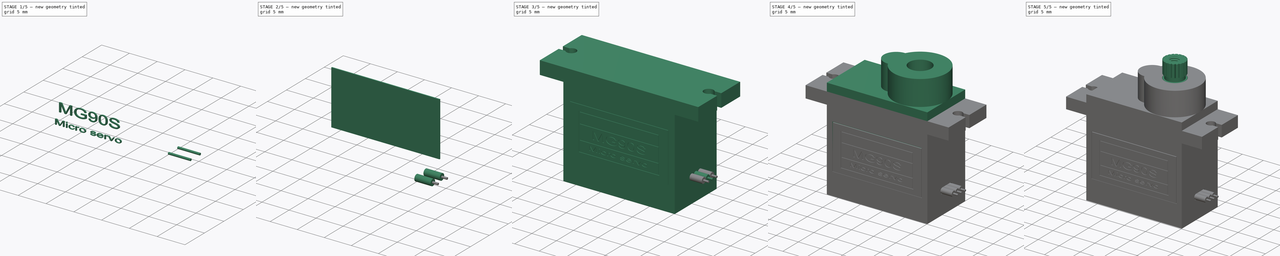
[diagram: build sequence overview — one tinted view per stage of 5, left to right]
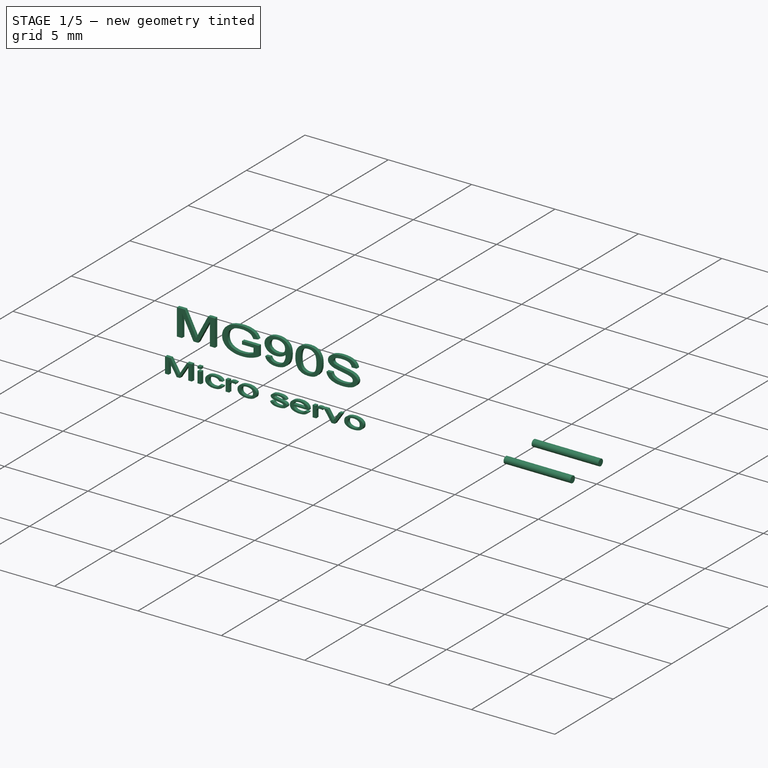
[diagram: stage 1 of 5 — iso view after this stage's code; geometry added in this stage tinted green]
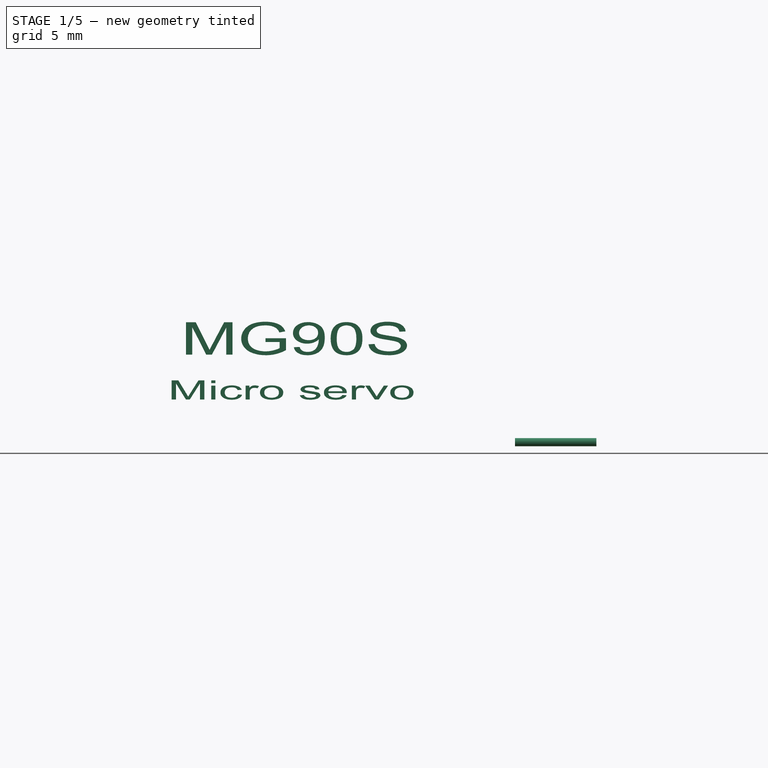
[diagram: stage 1 of 5 — front view after this stage's code; geometry added in this stage tinted green]
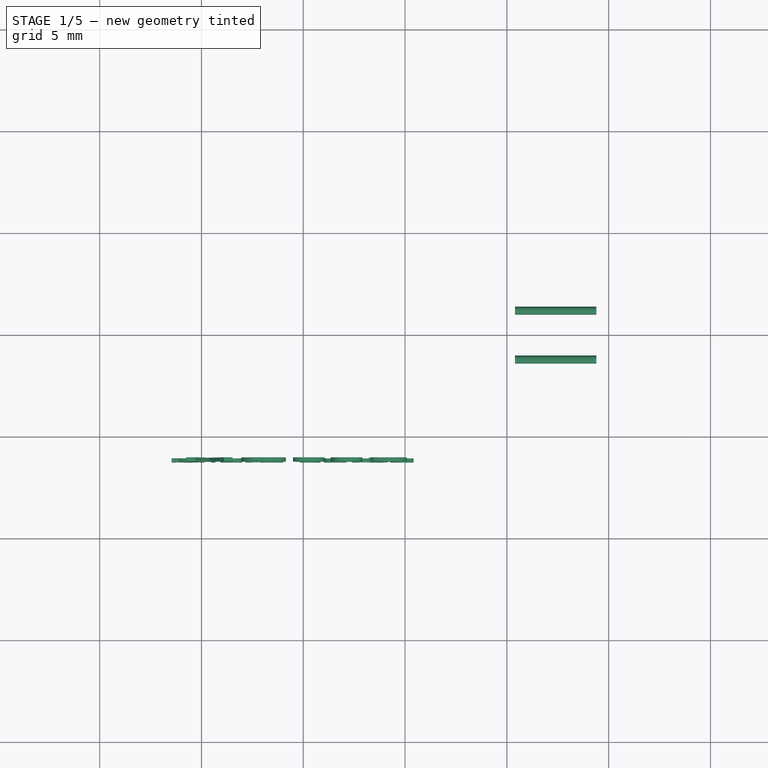
[diagram: stage 1 of 5 — top view after this stage's code; geometry added in this stage tinted green]
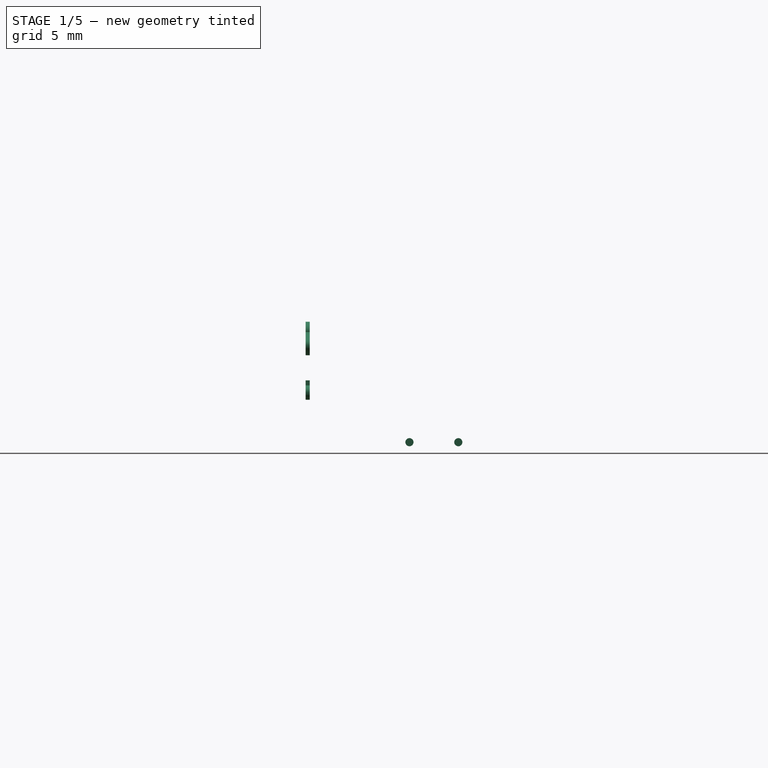
[diagram: stage 1 of 5 — right view after this stage's code; geometry added in this stage tinted green]
FCSTD DOCUMENT  (FreeCAD 0.21R33771 (Git))
Label: M90S_ali
License: All rights reserved
LicenseURL: http://en.wikipedia.org/wiki/All_rights_reserved
objects: Sketcher::SketchObject×13, PartDesign::Pad×5, PartDesign::Pocket×4, Part::Extrusion×4, Part::Part2DObjectPython×4, Part::Cut×3, Part::FeaturePython×3, Part::Cylinder×3, PartDesign::Body×2, PartDesign::Groove×1, PartDesign::Hole×1, PartDesign::PolarPattern×1, PartDesign::Mirrored×1, Part::Refine×1, Part::Compound×1
note: 58 computed .brp shape members not serialized (recipe doc carries the construction recipe); baked Part::Feature solids carry a one-line shape summary decoded from their .brp

FEATURE [Part::Part2DObjectPython] ShapeString  # Draft 2D object (typed FeaturePython)
  FontFile = <path>
  MakeFace = true
  Placement = pos=(-8.6,-6,-8.4) rot=(1,0,0;1.5708rad)
  Size = 1.7
  String = MG90S
  Tracking = 0
FEATURE [Part::Part2DObjectPython] Clone2D  label="ShapeString (2D)"  # Draft 2D object (typed FeaturePython)
  Fuse = false
  Objects = -> [ShapeString]
  Placement = pos=(-11,-6.1,-8.6) rot=(1,0,0;1.5708rad)
  Scale = (1.5,1,1)
FEATURE [Part::Part2DObjectPython] ShapeString001  # Draft 2D object (typed FeaturePython)
  FontFile = <path>
  MakeFace = true
  Placement = pos=(-9.8,-6,-11.2) rot=(1,0,0;1.5708rad)
  Size = 1
  String = Micro servo
  Tracking = 0
FEATURE [Part::Part2DObjectPython] Clone2D001  label="ShapeString001 (2D)"  # Draft 2D object (typed FeaturePython)
  Fuse = false
  Objects = -> [ShapeString001]
  Placement = pos=(-11.64,-6.1,-11.2) rot=(1,0,0;1.5708rad)
  Scale = (1.8,1,1)
FEATURE [Part::Extrusion] Extrude001
  Base = -> Clone2D001
  Dir = (0,-1,2e-16)
  DirMode = 2
  FaceMakerClass = Part::FaceMakerBullseye
  LengthFwd = 0.2
  LengthRev = 0
  Solid = false
  Symmetric = false
FEATURE [Part::Extrusion] Extrude002
  Base = -> Clone2D
  Dir = (0,-1,2e-16)
  DirMode = 2
  FaceMakerClass = Part::FaceMakerBullseye
  LengthFwd = 0.2
  LengthRev = 0
  Placement = pos=(0,0,-0.4) rot=(0,0,1;0rad)
  Solid = false
  Symmetric = false
FEATURE [Part::Compound] Compound
  Links = -> [Extrude001,Extrude002]
FEATURE [Part::Cylinder] Cylinder001  label="Cylindre001"
  Angle = 360
  AttacherType = Attacher::AttachEngine3D
  FirstAngle = 0
  Height = 4
  Placement = pos=(5.4,1.2,-13.3) rot=(0,1,0;1.5708rad)
  Radius = 0.2
  SecondAngle = 0
FEATURE [Part::Cylinder] Cylinder002  label="Cylindre002"
  Angle = 360
  AttacherType = Attacher::AttachEngine3D
  FirstAngle = 0
  Height = 4
  Placement = pos=(5.4,-1.2,-13.3) rot=(0,1,0;1.5708rad)
  Radius = 0.2
  SecondAngle = 0
note: 2 file-system paths scrubbed to <path> (originals preserved in the JSON sidecar)
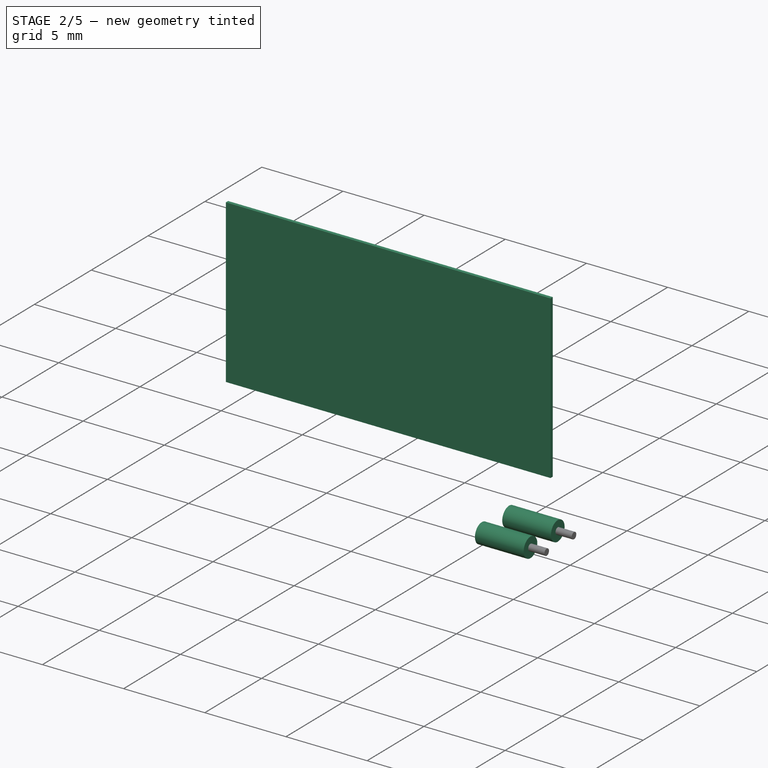
[diagram: stage 2 of 5 — iso view after this stage's code; geometry added in this stage tinted green]
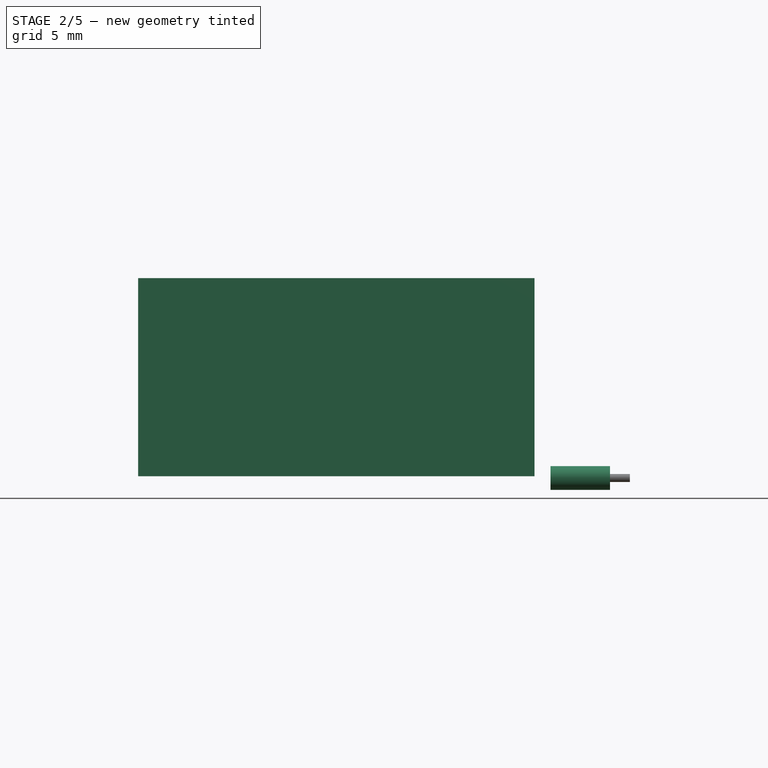
[diagram: stage 2 of 5 — front view after this stage's code; geometry added in this stage tinted green]
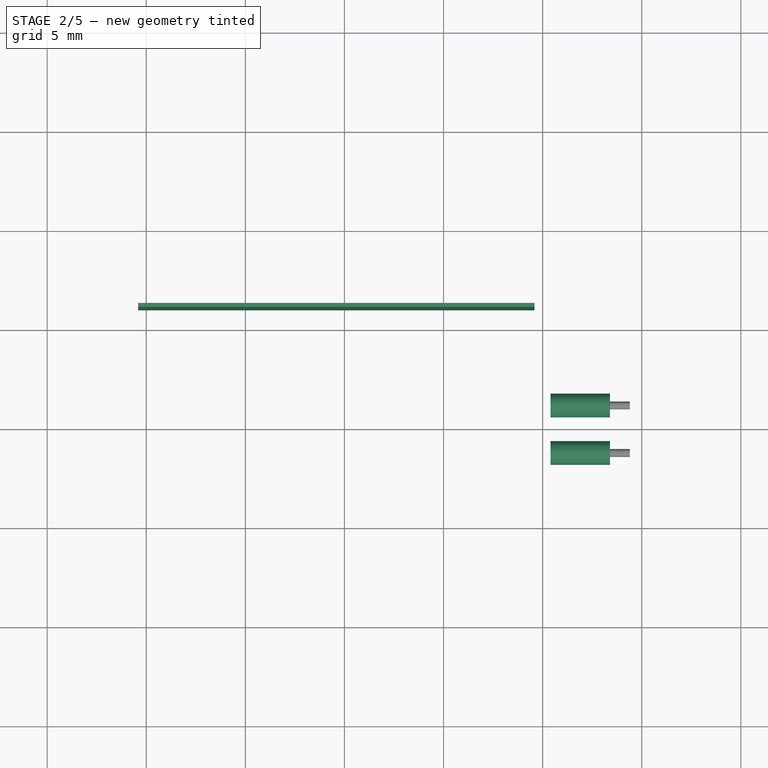
[diagram: stage 2 of 5 — top view after this stage's code; geometry added in this stage tinted green]
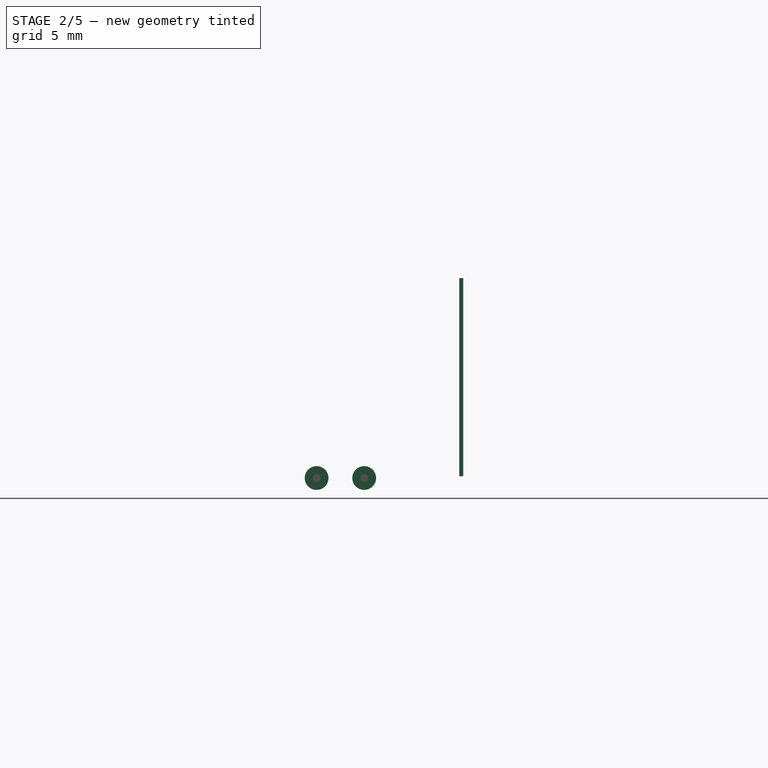
[diagram: stage 2 of 5 — right view after this stage's code; geometry added in this stage tinted green]
FEATURE [PartDesign::Body] Body  label="base"
  Group = -> [Sketch,Pad,Sketch001,Pad001,Sketch002,Pad002,Sketch003,Pad003,Sketch004,Pocket,Sketch005,Pocket001,Sketch010,Pocket003,Mirrored]
  Origin = -> Origin
  Tip = -> Mirrored
FEATURE [Part::Refine] Body002  label="base001"
  Source = -> Body
FEATURE [Sketcher::SketchObject] Sketch011
  FullyConstrained = true
  Placement = pos=(0,0,0) rot=(1,0,0;1.5708rad)
  sketch-geometry (4):
    g0: LineSegment StartX=-15.3914 StartY=-3.21198 StartZ=0 EndX=4.60862 EndY=-3.21198 EndZ=0
    g1: LineSegment StartX=4.60862 StartY=-3.21198 StartZ=0 EndX=4.60862 EndY=-13.212 EndZ=0
    g2: LineSegment StartX=4.60862 StartY=-13.212 StartZ=0 EndX=-15.3914 EndY=-13.212 EndZ=0
    g3: LineSegment StartX=-15.3914 StartY=-13.212 StartZ=0 EndX=-15.3914 EndY=-3.21198 EndZ=0
  constraints (12):
    c: Coincident(g0,g1)
    c: Coincident(g1,g2)
    c: Coincident(g2,g3)
    c: Coincident(g3,g0)
    c: Horizontal(g0)
    c: Horizontal(g2)
    c: Vertical(g1)
    c: Vertical(g3)
    c: DistanceX(g0,g0) = 20
    c: DistanceY(g1,g1) = 10
    c: DistanceX(g0) = 4.60862
    c: DistanceY(g0) = -3.21198
FEATURE [Part::Extrusion] Extrude
  Base = -> Sketch011
  Dir = (0,-1,2e-16)
  DirMode = 2
  FaceMakerClass = Part::FaceMakerBullseye
  LengthFwd = 0.2
  LengthRev = 0
  Placement = pos=(0,-6,0) rot=(0,0,1;0rad)
  Solid = true
  Symmetric = false
FEATURE [Sketcher::SketchObject] Sketch012
  ExternalGeometry = -> [Extrude]
  FullyConstrained = false
  Placement = pos=(0,-6.1,0) rot=(1,0,0;1.5708rad)
  sketch-geometry (21):
    g0: LineSegment StartX=-13.3914 StartY=-6.81198 StartZ=0 EndX=2.60862 EndY=-6.81198 EndZ=0
    g1: LineSegment StartX=2.60862 StartY=-6.81198 StartZ=0 EndX=2.60862 EndY=-9.61198 EndZ=0
    g2: LineSegment StartX=2.60862 StartY=-9.61198 StartZ=0 EndX=-13.3914 EndY=-9.61198 EndZ=0
    g3: LineSegment StartX=-13.3914 StartY=-9.61198 StartZ=0 EndX=-13.3914 EndY=-6.81198 EndZ=0
    g4: LineSegment StartX=-13.3914 StartY=-9.81198 StartZ=0 EndX=2.60862 EndY=-9.81198 EndZ=0
    g5: LineSegment StartX=2.60862 StartY=-9.81198 StartZ=0 EndX=2.60862 EndY=-11.812 EndZ=0
    g6: LineSegment StartX=2.60862 StartY=-11.812 StartZ=0 EndX=-13.3914 EndY=-11.812 EndZ=0
    g7: LineSegment StartX=-13.3914 StartY=-11.812 StartZ=0 EndX=-13.3914 EndY=-9.81198 EndZ=0
    g8: LineSegment StartX=-13.3914 StartY=-4.61198 StartZ=0 EndX=2.60862 EndY=-4.61198 EndZ=0
    g9: LineSegment StartX=2.60862 StartY=-4.61198 StartZ=0 EndX=2.60862 EndY=-6.61198 EndZ=0
    g10: LineSegment StartX=2.60862 StartY=-6.61198 StartZ=0 EndX=-13.3914 EndY=-6.61198 EndZ=0
    g11: LineSegment StartX=-13.3914 StartY=-6.61198 StartZ=0 EndX=-13.3914 EndY=-4.61198 EndZ=0
    g12: LineSegment StartX=-13.5914 StartY=-4.41198 StartZ=0 EndX=2.80862 EndY=-4.41198 EndZ=0
    g13: LineSegment StartX=2.80862 StartY=-4.41198 StartZ=0 EndX=2.80862 EndY=-12.012 EndZ=0
    g14: LineSegment StartX=2.80862 StartY=-12.012 StartZ=0 EndX=-13.5914 EndY=-12.012 EndZ=0
    g15: LineSegment StartX=-13.5914 StartY=-12.012 StartZ=0 EndX=-13.5914 EndY=-4.41198 EndZ=0
    g16: GeomPoint X=-5.39138 Y=-13.212 Z=0
    g17: LineSegment StartX=-5.39138 StartY=-13.212 StartZ=0 EndX=-5.39138 EndY=-3.21198 EndZ=0
    g18: GeomPoint X=-5.39138 Y=-8.21198 Z=0
    g19: GeomPoint X=-5.39138 Y=-8.21198 Z=0
    g20: LineSegment StartX=-5.39138 StartY=-8.21198 StartZ=0 EndX=-9.69464 EndY=-8.21198 EndZ=0
  constraints (55):
    c: Coincident(g0,g1)
    c: Coincident(g1,g2)
    c: Coincident(g2,g3)
    c: Coincident(g3,g0)
    c: Horizontal(g0)
    c: Horizontal(g2)
    c: Vertical(g1)
    c: Vertical(g3)
    c: Coincident(g4,g5)
    c: Coincident(g5,g6)
    c: Coincident(g6,g7)
    c: Coincident(g7,g4)
    c: Horizontal(g4)
    c: Horizontal(g6)
    c: Vertical(g5)
    c: Vertical(g7)
    c: Coincident(g8,g9)
    c: Coincident(g9,g10)
    c: Coincident(g10,g11)
    c: Coincident(g11,g8)
    c: Horizontal(g8)
    c: Horizontal(g10)
    c: Vertical(g9)
    c: Vertical(g11)
    c: Vertical(g10,g0)
    c: Vertical(g0,g4)
    c: Vertical(g9,g0)
    c: Vertical(g0,g4)
    c: DistanceY(g0,g10) = 0.2
    c: DistanceY(g4,g2) = 0.2
    c: Coincident(g12,g13)
    c: Coincident(g13,g14)
    c: Coincident(g14,g15)
    c: Coincident(g15,g12)
    c: Horizontal(g12)
    c: Horizontal(g14)
    c: Vertical(g13)
    c: Vertical(g15)
    c: DistanceX(g6,g6) = 16
    c: Symmetric(g-4,g-4,g16)
    c: Coincident(g17,g16)
    c: PointOnObject(g17,g-3)
    c: Symmetric(g6,g5,g17)
    c: DistanceX(g14,g6) = 0.2
    c: DistanceX(g5,g13) = 0.2
    c: DistanceY(g8,g12) = 0.2
    c: PointOnObject(g18,g17)
    c: Symmetric(g17,g16,g19)
    c: DistanceY(g10,g8) = 2
    c: DistanceY(g2,g0) = 2.8
    c: DistanceY(g6,g4) = 2
    c: DistanceY(g14,g6) = 0.2
    c: DistanceY(g14,g12) = 7.6
    c: Coincident(g20,g19)
    c: Symmetric(g12,g14,g20)
FEATURE [Part::Extrusion] Extrude003
  Base = -> Sketch012
  Dir = (0,-1,2e-16)
  DirMode = 2
  FaceMakerClass = Part::FaceMakerBullseye
  LengthFwd = 0.2
  LengthRev = 0
  Solid = true
  Symmetric = false
FEATURE [Part::Cut] Cut
  Base = -> Extrude
  Tool = -> Extrude003
FEATURE [Part::FeaturePython] Tube001  # WARN: FeaturePython — macro-defined, semantics opaque (R4)
  AttacherType = Attacher::AttachEngine3D
  Height = 3
  InnerRadius = 0.2
  OuterRadius = 0.6
  Placement = pos=(5.4,-1.2,-13.3) rot=(0,1,0;1.5708rad)
FEATURE [Part::FeaturePython] Tube002  # WARN: FeaturePython — macro-defined, semantics opaque (R4)
  AttacherType = Attacher::AttachEngine3D
  Height = 3
  InnerRadius = 0.2
  OuterRadius = 0.6
  Placement = pos=(5.4,1.2,-13.3) rot=(0,1,0;1.5708rad)
FEATURE [Part::Cut] Cut002  label="etiquette001"
  Base = -> Cut
  Placement = pos=(-10.8,1e-15,0) rot=(0,0,1;3.14159rad)
  Tool = -> Compound
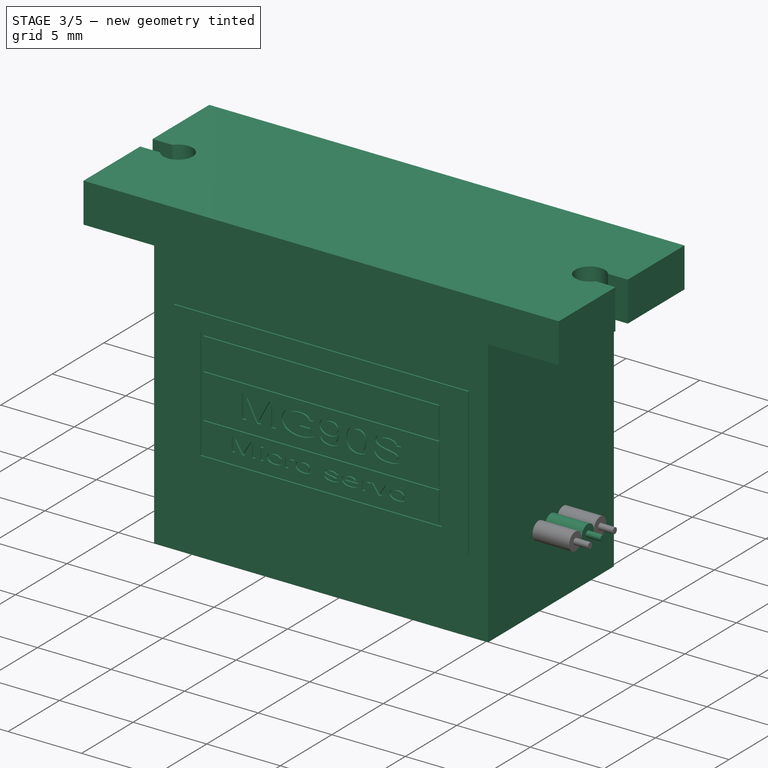
[diagram: stage 3 of 5 — iso view after this stage's code; geometry added in this stage tinted green]
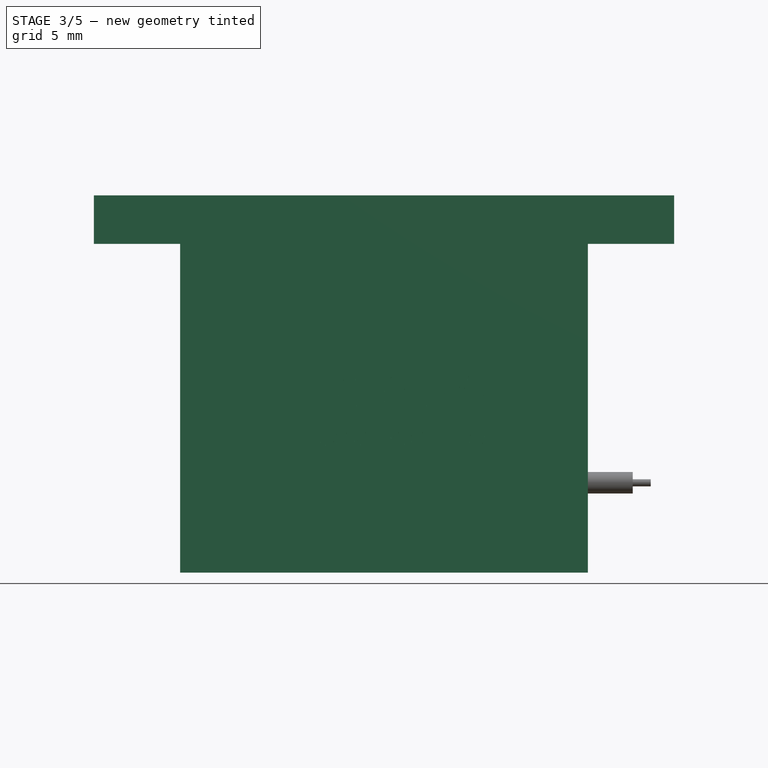
[diagram: stage 3 of 5 — front view after this stage's code; geometry added in this stage tinted green]
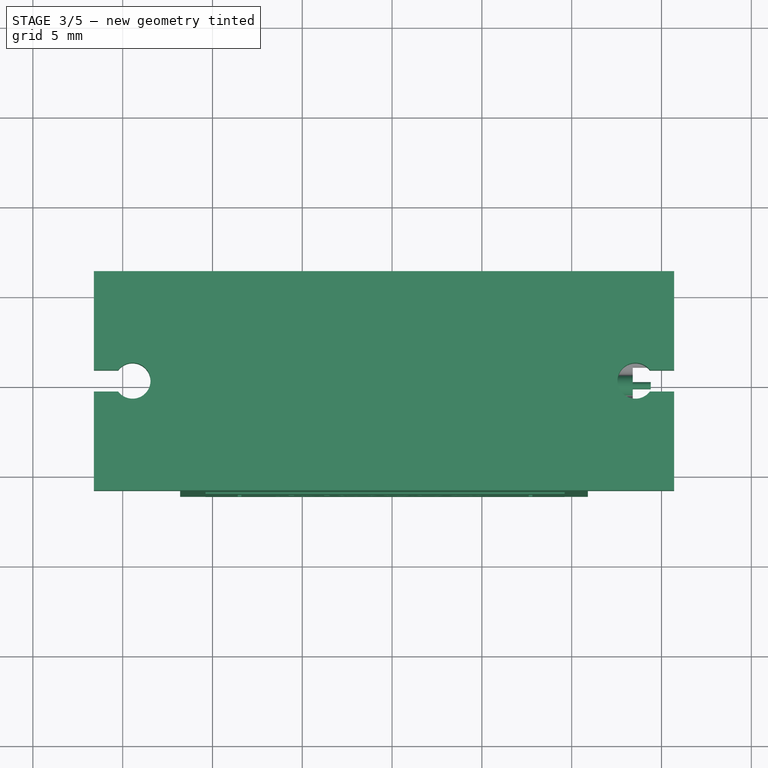
[diagram: stage 3 of 5 — top view after this stage's code; geometry added in this stage tinted green]
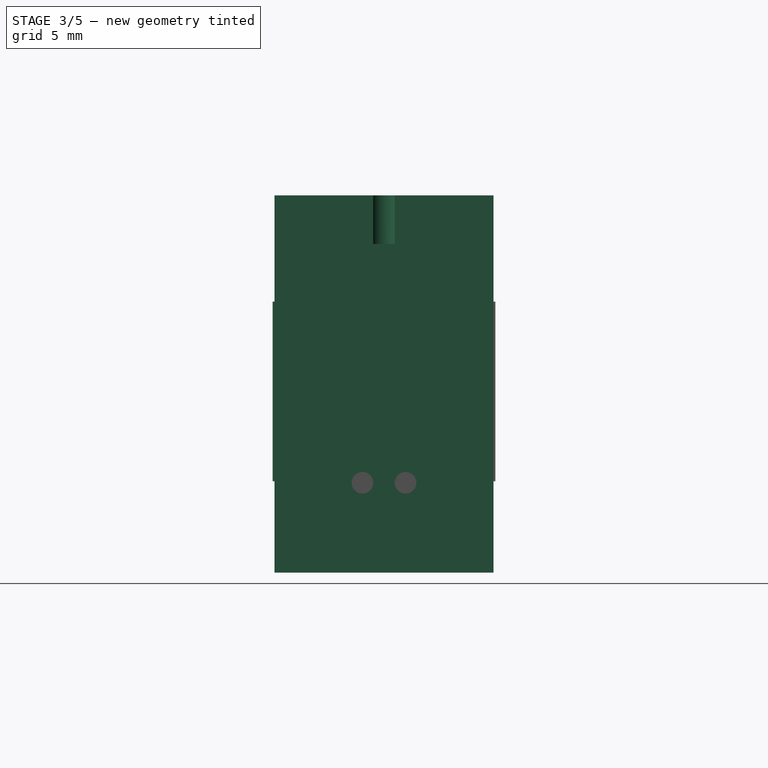
[diagram: stage 3 of 5 — right view after this stage's code; geometry added in this stage tinted green]
FEATURE [Sketcher::SketchObject] Sketch
  FullyConstrained = true
  MapMode = 5
  Support = -> [XY_Plane]
  sketch-geometry (7):
    g0: LineSegment StartX=-16.8 StartY=6.1 StartZ=0 EndX=-16.8 EndY=-6.1 EndZ=0
    g1: LineSegment StartX=-16.8 StartY=-6.1 StartZ=0 EndX=5.9 EndY=-6.1 EndZ=0
    g2: LineSegment StartX=5.9 StartY=-6.1 StartZ=0 EndX=5.9 EndY=6.1 EndZ=0
    g3: LineSegment StartX=5.9 StartY=6.1 StartZ=0 EndX=-16.8 EndY=6.1 EndZ=0
    g4: GeomPoint X=-5.45 Y=0 Z=0
    g5: GeomPoint X=-19.5 Y=0 Z=0
    g6: GeomPoint X=8.5 Y=0 Z=0
  constraints (19):
    c: Coincident(g0,g1)
    c: Coincident(g1,g2)
    c: Coincident(g2,g3)
    c: Coincident(g3,g0)
    c: Horizontal(g1)
    c: Horizontal(g3)
    c: Vertical(g0)
    c: Vertical(g2)
    c: Symmetric(g1,g0,g4)
    c: PointOnObject(g4,g-1)
    c: DistanceY(g2,g2) = 12.2
    c: DistanceX(g3,g3) = 22.7
    c: PointOnObject(g5,g-1)
    c: PointOnObject(g6,g-1)
    c: DistanceX(g-1,g6) = 8.5
    c: DistanceX(g5,g-1) = 19.5
    c: DistanceX(g5,g6) = 28
    c: DistanceX(g1,g6) = 2.6
    c: DistanceX(g5,g0) = 2.7
FEATURE [PartDesign::Pad] Pad
  Direction = (0,0,1)
  Length = 18.3
  Length2 = 10
  Profile = -> Sketch
  ReferenceAxis = -> Sketch [N_Axis]
  Reversed = true
  Type = 0
FEATURE [Sketcher::SketchObject] Sketch001
  ExternalGeometry = -> [Pad]
  FullyConstrained = true
  MapMode = 5
  Support = -> [XY_Plane]
  sketch-geometry (15):
    g0: LineSegment StartX=-21.6 StartY=6.1 StartZ=0 EndX=-21.6 EndY=0.6 EndZ=0
    g1: LineSegment StartX=-21.6 StartY=-6.1 StartZ=0 EndX=10.7 EndY=-6.1 EndZ=0
    g2: LineSegment StartX=10.7 StartY=-6.1 StartZ=0 EndX=10.7 EndY=-0.6 EndZ=0
    g3: LineSegment StartX=10.7 StartY=6.1 StartZ=0 EndX=-21.6 EndY=6.1 EndZ=0
    g4: GeomPoint X=-5.45 Y=0 Z=0
    g5: GeomPoint X=-5.45 Y=6.1 Z=0
    g6: ArcOfCircle CenterX=-19.45 CenterY=0 CenterZ=0 NormalX=0 NormalY=0 NormalZ=1 AngleXU=0 Radius=1 StartAngle=3.78509 EndAngle=8.78128
    g7: ArcOfCircle CenterX=8.55 CenterY=0 CenterZ=0 NormalX=0 NormalY=0 NormalZ=1 AngleXU=0 Radius=1 StartAngle=0.643501 EndAngle=5.63968
    g8: LineSegment StartX=-5.45 StartY=6.1 StartZ=0 EndX=-5.45 EndY=-6.1 EndZ=0
    g9: LineSegment StartX=-20.25 StartY=0.6 StartZ=0 EndX=-21.6 EndY=0.6 EndZ=0
    g10: LineSegment StartX=-20.25 StartY=-0.6 StartZ=0 EndX=-21.6 EndY=-0.6 EndZ=0
    g11: LineSegment StartX=-21.6 StartY=-0.6 StartZ=0 EndX=-21.6 EndY=-6.1 EndZ=0
    g12: LineSegment StartX=9.35 StartY=0.6 StartZ=0 EndX=10.7 EndY=0.6 EndZ=0
    g13: LineSegment StartX=9.35 StartY=-0.6 StartZ=0 EndX=10.7 EndY=-0.6 EndZ=0
    g14: LineSegment StartX=10.7 StartY=0.6 StartZ=0 EndX=10.7 EndY=6.1 EndZ=0
  constraints (40):
    c: Coincident(g11,g1)
    c: Coincident(g1,g2)
    c: Coincident(g14,g3)
    c: Coincident(g3,g0)
    c: Horizontal(g1)
    c: Horizontal(g3)
    c: Vertical(g0)
    c: Vertical(g2)
    c: Symmetric(g1,g0,g4)
    c: PointOnObject(g4,g-1)
    c: Symmetric(g-3,g-4,g5)
    c: DistanceX(g3,g3) = 32.3
    c: Symmetric(g0,g14,g5)
    c: PointOnObject(g6,g-1)
    c: PointOnObject(g7,g-1)
    c: Coincident(g8,g5)
    c: PointOnObject(g8,g1)
    c: DistanceX(g6,g7) = 28
    c: Symmetric(g6,g7,g8)
    c: Horizontal(g9)
    c: Horizontal(g10)
    c: Symmetric(g9,g10,g-1)
    c: DistanceY(g10,g9) = 1.2
    c: Diameter(g6) = 2
    c: Coincident(g6,g9)
    c: Coincident(g6,g10)
    c: Coincident(g0,g9)
    c: Vertical(g11)
    c: Coincident(g11,g10)
    c: Equal(g6,g7)
    c: Horizontal(g12)
    c: Horizontal(g13)
    c: Horizontal(g13,g6)
    c: Horizontal(g12,g6)
    c: Coincident(g7,g13)
    c: Coincident(g7,g12)
    c: Coincident(g2,g13)
    c: Coincident(g14,g12)
    c: Vertical(g14)
    c: Vertical(g2,g12)
FEATURE [PartDesign::Pad] Pad001
  BaseFeature = -> Pad
  Direction = (0,0,1)
  Length = 2.7
  Length2 = 10
  Profile = -> Sketch001
  ReferenceAxis = -> Sketch001 [N_Axis]
  Type = 0
FEATURE [Part::Cut] Cut001  label="etiquette"
  Base = -> Cut
  Tool = -> Compound
FEATURE [Part::FeaturePython] Tube  # WARN: FeaturePython — macro-defined, semantics opaque (R4)
  AttacherType = Attacher::AttachEngine3D
  Height = 3
  InnerRadius = 0.2
  OuterRadius = 0.6
  Placement = pos=(5.4,0,-13.3) rot=(0,1,0;1.5708rad)
FEATURE [Part::Cylinder] Cylinder  label="Cylindre"
  Angle = 360
  AttacherType = Attacher::AttachEngine3D
  FirstAngle = 0
  Height = 4
  Placement = pos=(5.4,0,-13.3) rot=(0,1,0;1.5708rad)
  Radius = 0.2
  SecondAngle = 0
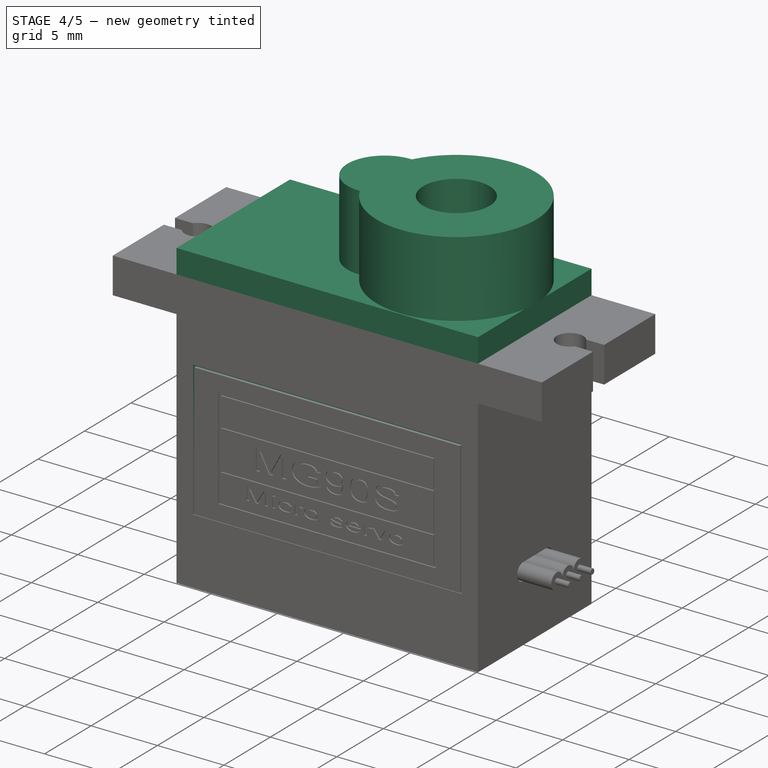
[diagram: stage 4 of 5 — iso view after this stage's code; geometry added in this stage tinted green]
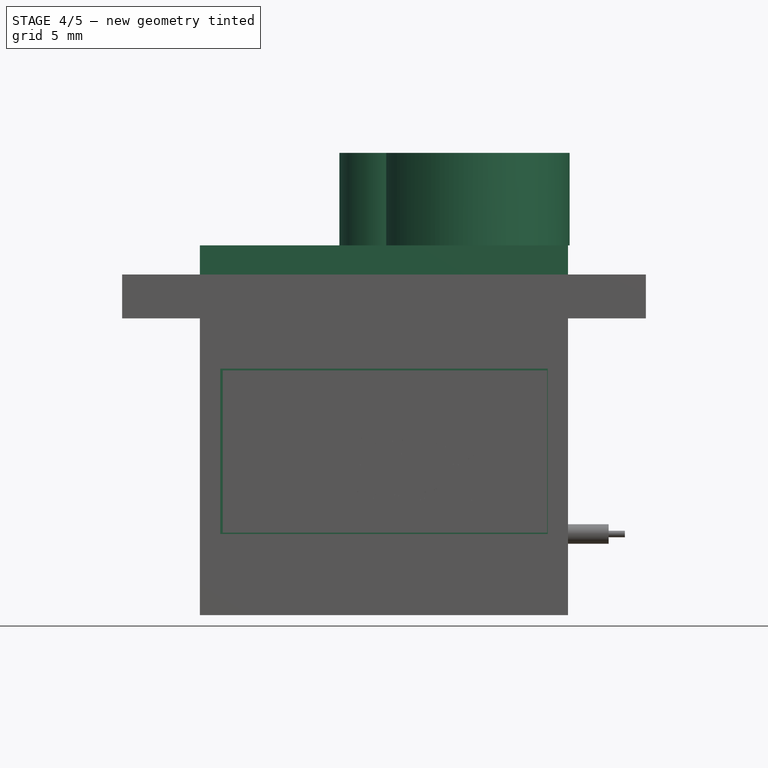
[diagram: stage 4 of 5 — front view after this stage's code; geometry added in this stage tinted green]
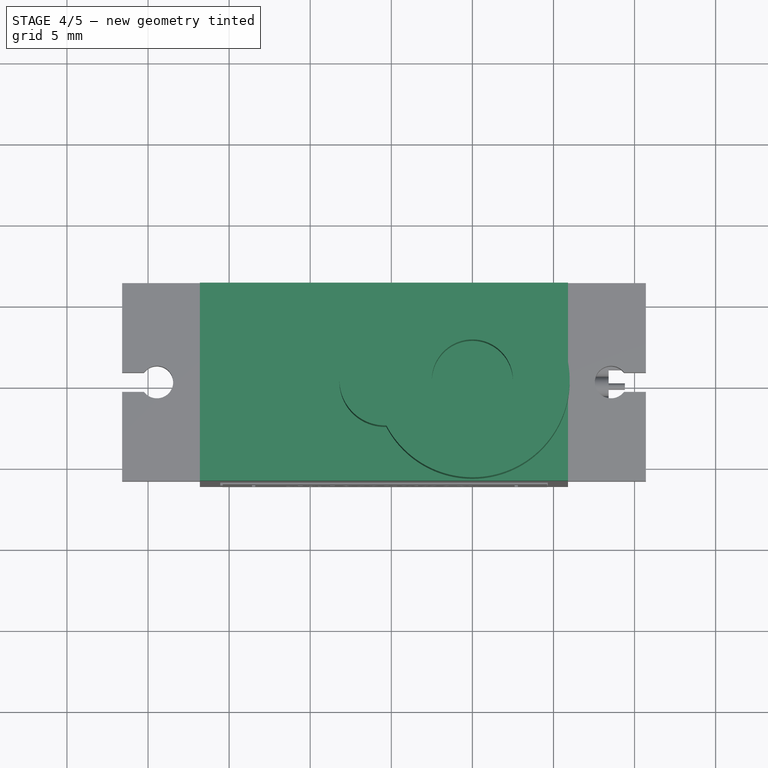
[diagram: stage 4 of 5 — top view after this stage's code; geometry added in this stage tinted green]
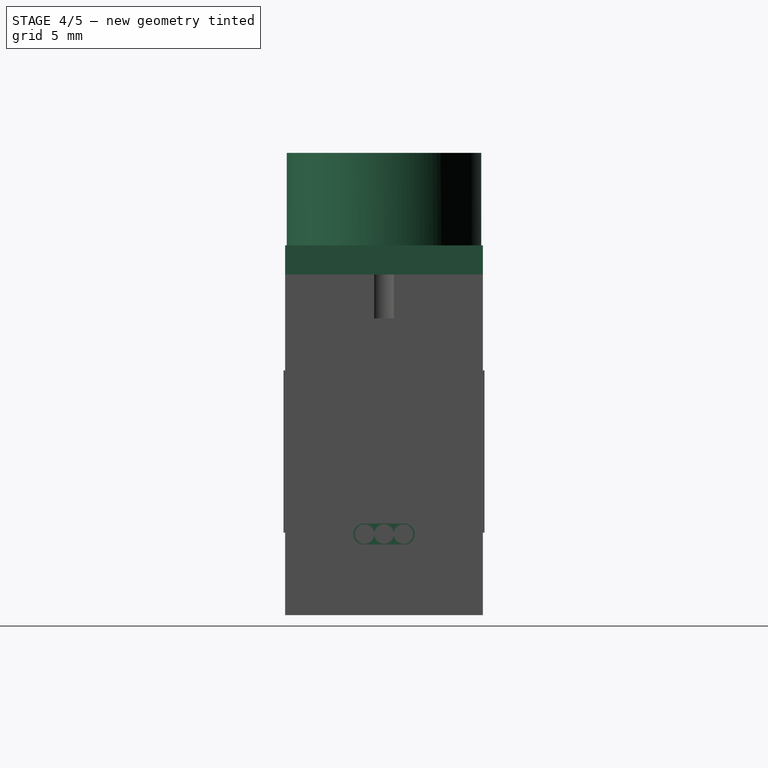
[diagram: stage 4 of 5 — right view after this stage's code; geometry added in this stage tinted green]
FEATURE [Sketcher::SketchObject] Sketch002
  ExternalGeometry = -> [Pad001]
  FullyConstrained = true
  MapMode = 5
  Support = -> [XY_Plane]
  sketch-geometry (4):
    g0: LineSegment StartX=-16.8 StartY=6.1 StartZ=0 EndX=5.9 EndY=6.1 EndZ=0
    g1: LineSegment StartX=5.9 StartY=6.1 StartZ=0 EndX=5.9 EndY=-6.1 EndZ=0
    g2: LineSegment StartX=5.9 StartY=-6.1 StartZ=0 EndX=-16.8 EndY=-6.1 EndZ=0
    g3: LineSegment StartX=-16.8 StartY=-6.1 StartZ=0 EndX=-16.8 EndY=6.1 EndZ=0
  constraints (10):
    c: Coincident(g0,g1)
    c: Coincident(g1,g2)
    c: Coincident(g2,g3)
    c: Coincident(g3,g0)
    c: Horizontal(g0)
    c: Horizontal(g2)
    c: Vertical(g1)
    c: Vertical(g3)
    c: Coincident(g0,g-3)
    c: Coincident(g1,g-4)
FEATURE [PartDesign::Pad] Pad002
  BaseFeature = -> Pad001
  Direction = (0,0,1)
  Length = 4.5
  Length2 = 10
  Profile = -> Sketch002
  ReferenceAxis = -> Sketch002 [N_Axis]
  Type = 0
FEATURE [Sketcher::SketchObject] Sketch003
  FullyConstrained = true
  MapMode = 5
  Placement = pos=(0,0,4.5) rot=(0,0,1;0rad)
  Support = -> [Pad002]
  sketch-geometry (3):
    g0: ArcOfCircle CenterX=0 CenterY=0 CenterZ=0 NormalX=0 NormalY=0 NormalZ=1 AngleXU=0 Radius=6 StartAngle=3.62682 EndAngle=8.93955
    g1: GeomPoint X=-5.4 Y=0 Z=0
    g2: ArcOfCircle CenterX=-5.4 CenterY=0 CenterZ=0 NormalX=0 NormalY=0 NormalZ=1 AngleXU=0 Radius=2.8 StartAngle=1.53772 EndAngle=4.74546
  constraints (8):
    c: Coincident(g0,g-1)
    c: PointOnObject(g1,g-1)
    c: DistanceX(g1,g0) = 5.4
    c: Coincident(g2,g1)
    c: Diameter(g2) = 5.6
    c: Diameter(g0) = 12
    c: Coincident(g2,g0)
    c: Coincident(g0,g2)
FEATURE [PartDesign::Pad] Pad003
  BaseFeature = -> Pad002
  Direction = (0,0,1)
  Length = 5.7
  Length2 = 10
  Profile = -> Sketch003
  ReferenceAxis = -> Sketch003 [N_Axis]
  Type = 0
FEATURE [Sketcher::SketchObject] Sketch004
  AttachmentOffset = pos=(0,0,5) rot=(0,0,1;0rad)
  FullyConstrained = true
  MapMode = 5
  Placement = pos=(0,0,5) rot=(0,0,1;0rad)
  Support = -> [XY_Plane]
  sketch-geometry (1):
    g0: Circle CenterX=0 CenterY=0 CenterZ=0 NormalX=0 NormalY=0 NormalZ=1 AngleXU=0 Radius=2.5
  constraints (2):
    c: Coincident(g0,g-1)
    c: Diameter(g0) = 5
FEATURE [PartDesign::Pocket] Pocket
  BaseFeature = -> Pad003
  Direction = (0,0,-1)
  Length = 10
  Length2 = 5
  Profile = -> Sketch004
  ReferenceAxis = -> Sketch004 [N_Axis]
  Reversed = true
  Type = 0
FEATURE [Sketcher::SketchObject] Sketch005
  ExternalGeometry = -> [Pocket]
  FullyConstrained = true
  MapMode = 5
  Placement = pos=(5.9,0,0) rot=(0.57735,0.57735,0.57735;2.0944rad)
  Support = -> [Pocket]
  sketch-geometry (4):
    g0: ArcOfCircle CenterX=-1.25 CenterY=-13.3 CenterZ=0 NormalX=0 NormalY=0 NormalZ=1 AngleXU=0 Radius=0.65 StartAngle=1.5708 EndAngle=4.71239
    g1: ArcOfCircle CenterX=1.25 CenterY=-13.3 CenterZ=0 NormalX=0 NormalY=0 NormalZ=1 AngleXU=0 Radius=0.65 StartAngle=4.71239 EndAngle=7.85398
    g2: LineSegment StartX=-1.25 StartY=-13.95 StartZ=0 EndX=1.25 EndY=-13.95 EndZ=0
    g3: LineSegment StartX=1.25 StartY=-12.65 StartZ=0 EndX=-1.25 EndY=-12.65 EndZ=0
  constraints (9):
    c: Tangent(g0,g2) = -1.5708
    c: Tangent(g2,g1) = -1.5708
    c: Tangent(g1,g3) = -1.5708
    c: Tangent(g3,g0) = -1.5708
    c: Equal(g0,g1)
    c: DistanceX(g0,g1) = 2.5
    c: Diameter(g1) = 1.3
    c: Symmetric(g0,g1,g-2)
    c: DistanceY(g-3,g0) = 5
FEATURE [PartDesign::Pocket] Pocket001
  BaseFeature = -> Pocket
  Direction = (-1,0,0)
  Length = 1
  Length2 = 5
  Profile = -> Sketch005
  ReferenceAxis = -> Sketch005 [N_Axis]
  Type = 0
FEATURE [PartDesign::Body] Body001  label="axe"
  Group = -> [Sketch006,Pad004,Sketch007,Groove,Sketch008,Hole,Sketch009,Pocket002,PolarPattern]
  Origin = -> Origin001
  Tip = -> PolarPattern
FEATURE [Sketcher::SketchObject] Sketch010
  ExternalGeometry = -> [Pocket001]
  FullyConstrained = false
  MapMode = 5
  Placement = pos=(0,-6.1,0) rot=(1,0,0;1.5708rad)
  Support = -> [Pocket001]
  sketch-geometry (7):
    g0: LineSegment StartX=-15.55 StartY=-3.1 StartZ=0 EndX=4.65 EndY=-3.1 EndZ=0
    g1: LineSegment StartX=4.65 StartY=-3.1 StartZ=0 EndX=4.65 EndY=-13.3 EndZ=0
    g2: LineSegment StartX=4.65 StartY=-13.3 StartZ=0 EndX=-15.55 EndY=-13.3 EndZ=0
    g3: LineSegment StartX=-15.55 StartY=-13.3 StartZ=0 EndX=-15.55 EndY=-3.1 EndZ=0
    g4: GeomPoint X=-5.45 Y=-9.15 Z=0
    g5: GeomPoint X=-5.45 Y=-13.3 Z=0
    g6: GeomPoint X=-5.45 Y=-18.3 Z=0
  constraints (15):
    c: Coincident(g0,g1)
    c: Coincident(g1,g2)
    c: Coincident(g2,g3)
    c: Coincident(g3,g0)
    c: Horizontal(g0)
    c: Horizontal(g2)
    c: Vertical(g1)
    c: Vertical(g3)
    c: DistanceY(g1,g1) = 10.2
    c: DistanceX(g0,g0) = 20.2
    c: Symmetric(g2,g1,g5)
    c: Vertical(g5,g4)
    c: Symmetric(g-3,g-3,g6)
    c: Vertical(g5,g6)
    c: DistanceY(g-3,g2) = 5
FEATURE [PartDesign::Pocket] Pocket003
  BaseFeature = -> Pocket001
  Direction = (0,1,-2e-16)
  Length = 0.2
  Length2 = 5
  Profile = -> Sketch010
  ReferenceAxis = -> Sketch010 [N_Axis]
  Type = 0
FEATURE [PartDesign::Mirrored] Mirrored
  BaseFeature = -> Pocket003
  MirrorPlane = -> XZ_Plane
  Originals = -> [Pocket003]
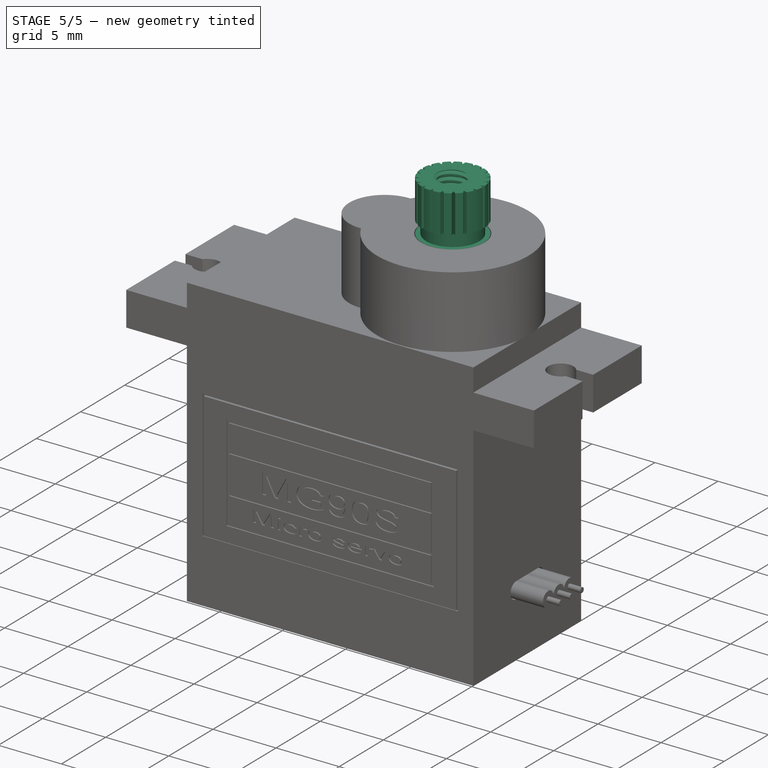
[diagram: stage 5 of 5 — iso view after this stage's code; geometry added in this stage tinted green]
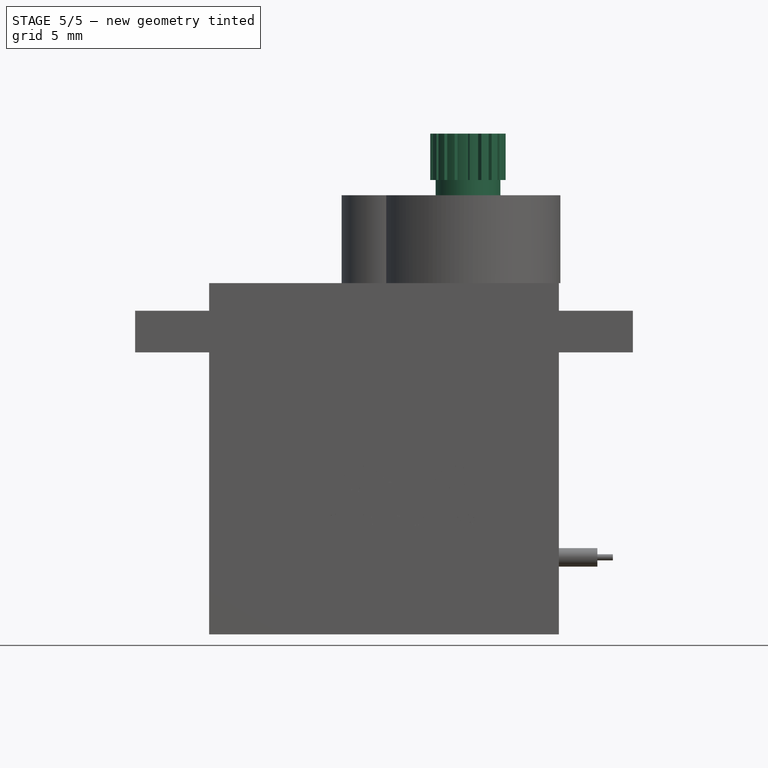
[diagram: stage 5 of 5 — front view after this stage's code; geometry added in this stage tinted green]
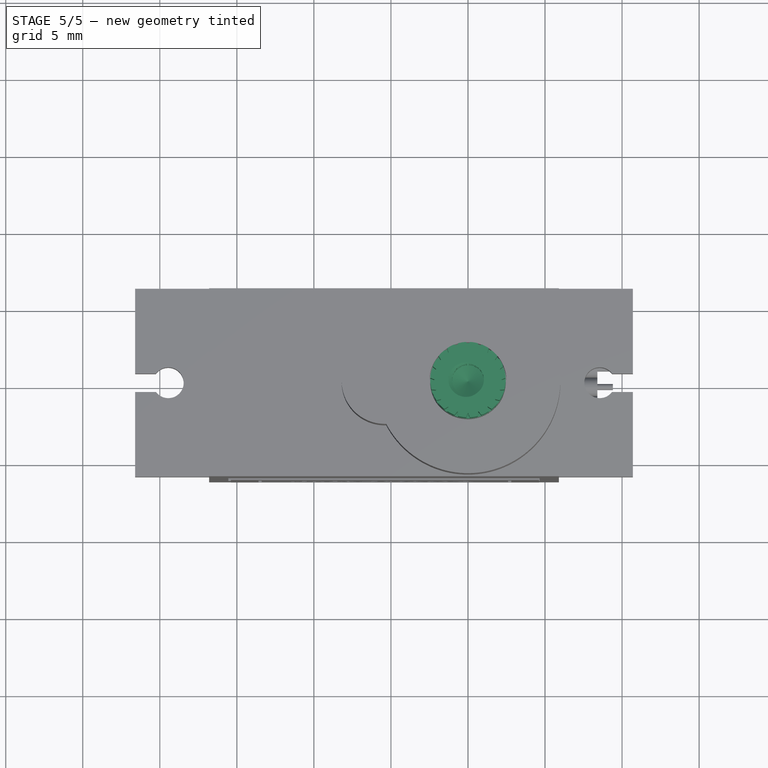
[diagram: stage 5 of 5 — top view after this stage's code; geometry added in this stage tinted green]
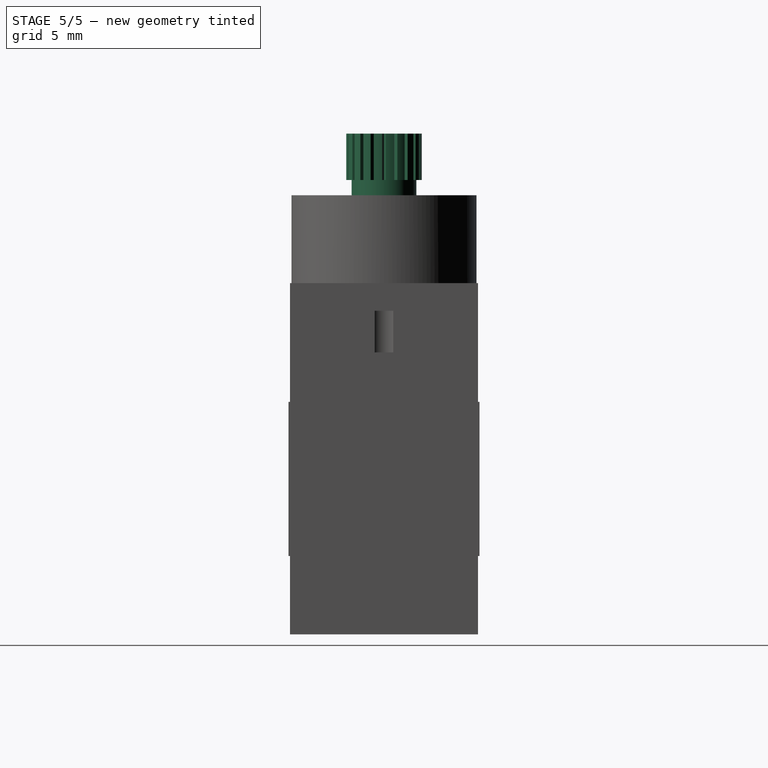
[diagram: stage 5 of 5 — right view after this stage's code; geometry added in this stage tinted green]
FEATURE [Sketcher::SketchObject] Sketch006
  FullyConstrained = true
  MapMode = 5
  Support = -> [XY_Plane001]
  sketch-geometry (1):
    g0: Circle CenterX=0 CenterY=0 CenterZ=0 NormalX=0 NormalY=0 NormalZ=1 AngleXU=0 Radius=2.45
  constraints (2):
    c: Coincident(g0,g-1)
    c: Diameter(g0) = 4.9
FEATURE [PartDesign::Pad] Pad004
  Direction = (0,0,1)
  Length = 14.2
  Length2 = 10
  Profile = -> Sketch006
  ReferenceAxis = -> Sketch006 [N_Axis]
  Type = 0
FEATURE [Sketcher::SketchObject] Sketch007
  FullyConstrained = false
  MapMode = 5
  Placement = pos=(0,0,0) rot=(1,0,0;1.5708rad)
  Support = -> [XZ_Plane001]
  sketch-geometry (4):
    g0: LineSegment StartX=2.1 StartY=11.1915 StartZ=0 EndX=3.35159 EndY=11.1915 EndZ=0
    g1: LineSegment StartX=3.35159 StartY=11.1915 StartZ=0 EndX=3.35159 EndY=10.1915 EndZ=0
    g2: LineSegment StartX=3.35159 StartY=10.1915 StartZ=0 EndX=2.1 EndY=10.1915 EndZ=0
    g3: LineSegment StartX=2.1 StartY=10.1915 StartZ=0 EndX=2.1 EndY=11.1915 EndZ=0
  constraints (10):
    c: Coincident(g0,g1)
    c: Coincident(g1,g2)
    c: Coincident(g2,g3)
    c: Coincident(g3,g0)
    c: Horizontal(g0)
    c: Horizontal(g2)
    c: Vertical(g1)
    c: Vertical(g3)
    c: DistanceX(g-1,g0) = 2.1
    c: DistanceY(g3,g3) = 1
FEATURE [PartDesign::Groove] Groove
  Angle = 360
  Axis = (0,2e-16,1)
  Base = (0,0,0)
  BaseFeature = -> Pad004
  Profile = -> Sketch007
  ReferenceAxis = -> Sketch007 [V_Axis]
FEATURE [Sketcher::SketchObject] Sketch008
  FullyConstrained = false
  MapMode = 5
  Placement = pos=(0,0,14.2) rot=(0,0,1;0rad)
  Support = -> [Groove]
  sketch-geometry (1):
    g0: Circle CenterX=0 CenterY=0 CenterZ=0 NormalX=0 NormalY=0 NormalZ=1 AngleXU=0 Radius=0.595377
  constraints (1):
    c: Coincident(g0,g-1)
FEATURE [PartDesign::Hole] Hole
  BaseFeature = -> Groove
  CustomThreadClearance = 0
  Depth = 6
  DepthType = 0
  Diameter = 2.07
  DrillForDepth = false
  DrillPoint = 1
  DrillPointAngle = 118
  HoleCutCountersinkAngle = 90
  HoleCutCustomValues = false
  HoleCutDepth = 0
  HoleCutDiameter = 6.1
  HoleCutType = 0
  ModelThread = true
  Profile = -> Sketch008
  Tapered = false
  TaperedAngle = 90
  ThreadClass = 0
  ThreadDepth = 6
  ThreadDepthType = 0
  ThreadDirection = 0
  ThreadFit = 0
  ThreadSize = 8
  ThreadType = 1
  Threaded = true
  UseCustomThreadClearance = false
FEATURE [Sketcher::SketchObject] Sketch009
  ExternalGeometry = -> [Hole]
  FullyConstrained = false
  MapMode = 5
  Placement = pos=(0,0,14.2) rot=(0,0,1;0rad)
  Support = -> [Hole]
  sketch-geometry (5):
    g0: LineSegment StartX=0 StartY=0 StartZ=0 EndX=2.41984 EndY=0.383264 EndZ=0
    g1: LineSegment StartX=0 StartY=0 StartZ=0 EndX=2.41984 EndY=-0.383264 EndZ=0
    g2: LineSegment StartX=2.15399 StartY=0 StartZ=0 EndX=2.68816 EndY=0.216262 EndZ=0
    g3: LineSegment StartX=2.68816 StartY=0.216262 StartZ=0 EndX=2.68816 EndY=-0.216262 EndZ=0
    g4: LineSegment StartX=2.68816 StartY=-0.216262 StartZ=0 EndX=2.15399 EndY=0 EndZ=0
  constraints (11):
    c: Coincident(g0,g-3)
    c: PointOnObject(g0,g-3)
    c: Coincident(g1,g0)
    c: PointOnObject(g1,g-3)
    c: Angle(g-1,g0) = 0.15708
    c: Angle(g1,g-1) = 0.15708
    c: PointOnObject(g2,g-1)
    c: Coincident(g2,g3)
    c: Coincident(g3,g4)
    c: Coincident(g4,g2)
    c: Symmetric(g2,g3,g-1)
FEATURE [PartDesign::Pocket] Pocket002
  BaseFeature = -> Hole
  Direction = (0,0,-1)
  Length = 3.5
  Length2 = 5
  Profile = -> Sketch009
  ReferenceAxis = -> Sketch009 [N_Axis]
  Type = 0
FEATURE [PartDesign::PolarPattern] PolarPattern
  Angle = 360
  Axis = -> Z_Axis001
  BaseFeature = -> Pocket002
  Occurrences = 20
  Originals = -> [Pocket002]
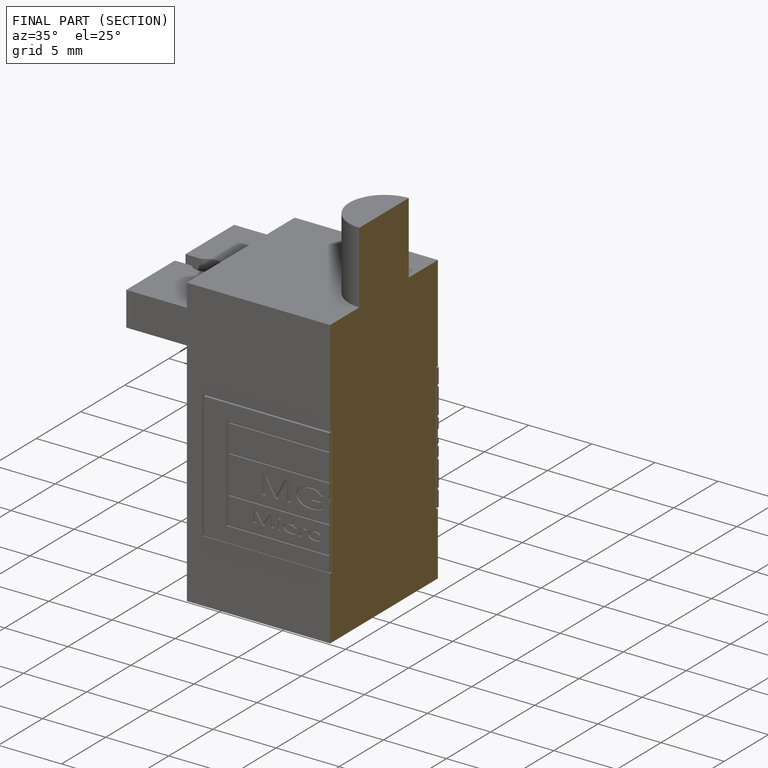
[diagram: finished part — half-section view (interior)]
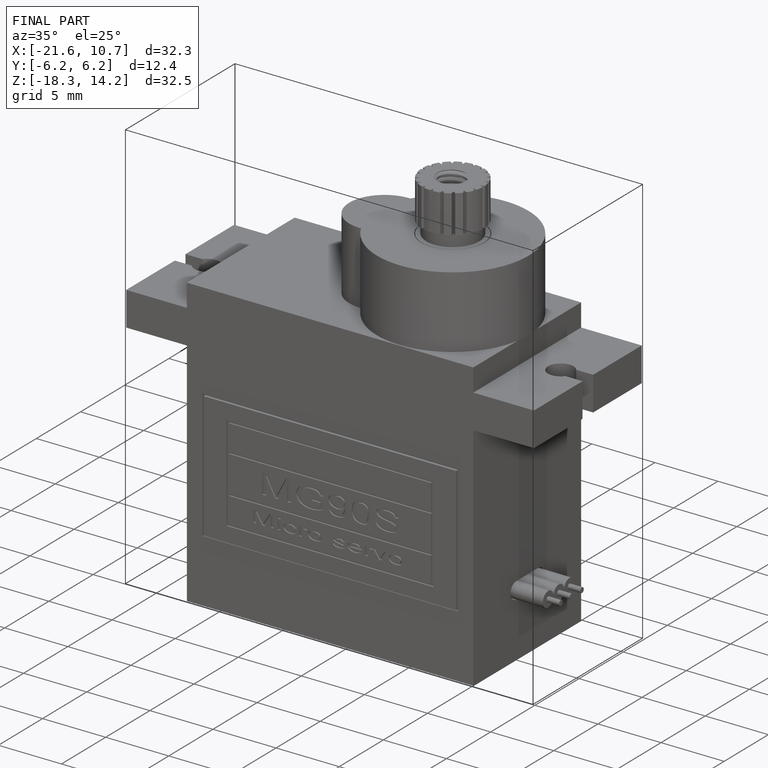
[diagram: finished part — iso view with bounding-box wireframe]
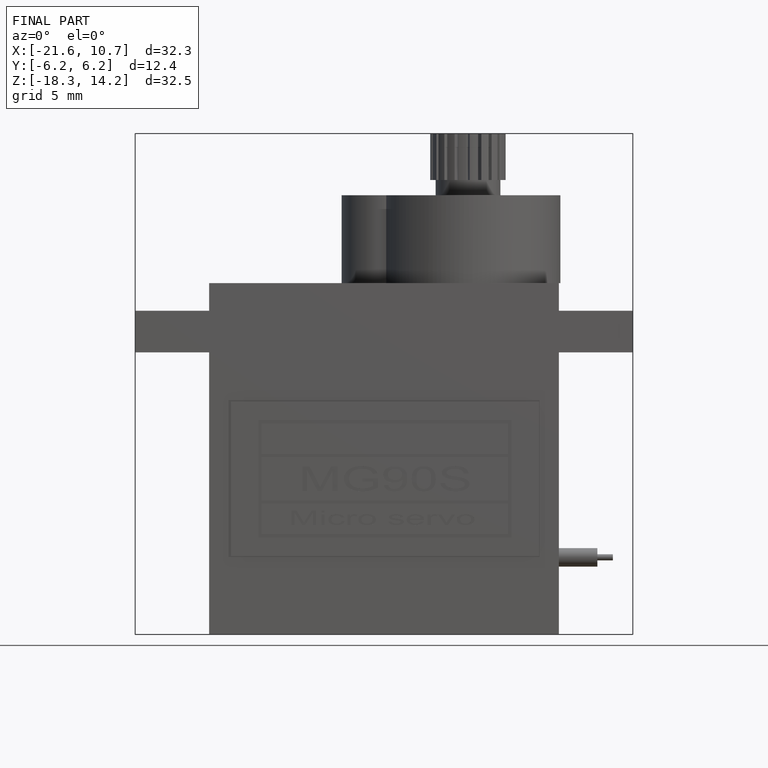
[diagram: finished part — front view with bounding-box wireframe]
